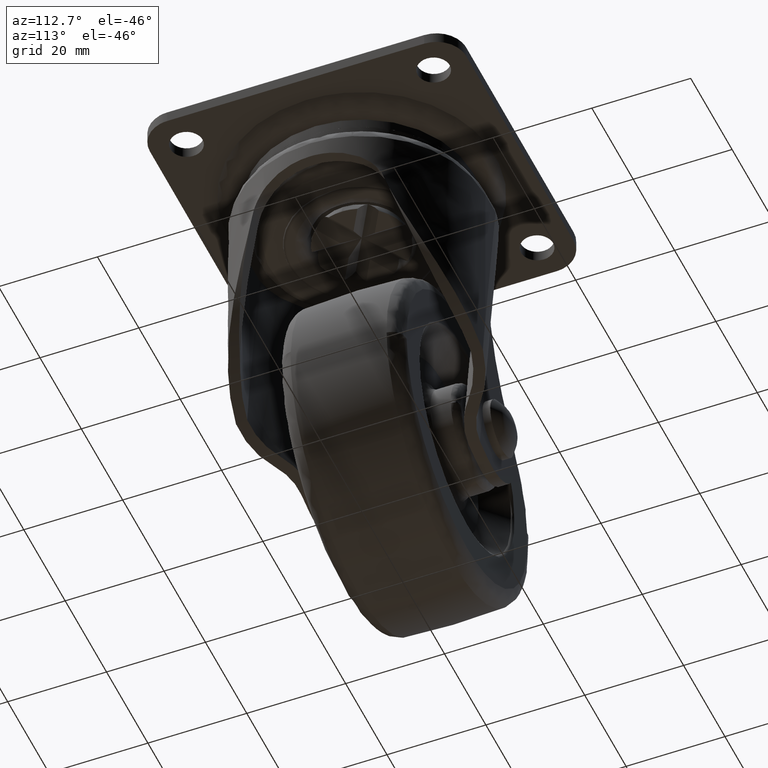
[diagram: clean part render]
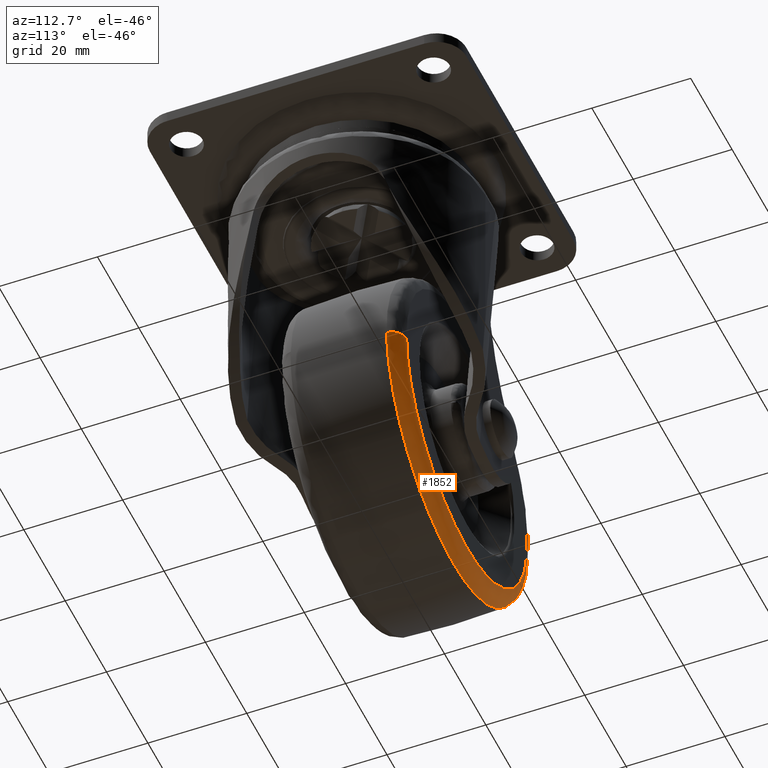
[diagram: same view with one face highlighted and labeled with its STEP entity id]
A machine part, auxiliary view. The second image highlights one B-rep face of the part: STEP entity #1852.
In plain terms, the highlighted face is a freeform B-spline surface patch.
Its self-contained STEP definition (entity closure, byte-faithful):
#1622=CARTESIAN_POINT('',(32.171227503708117,9.693880657307908,-53.489289725905302));
#1623=VERTEX_POINT('',#1622);
#1645=CARTESIAN_POINT('',(29.178913339442889,12.500000000000000,-53.397273788641762));
#1646=VERTEX_POINT('',#1645);
#1647=CARTESIAN_POINT('',(29.178913339442889,12.500000000000000,-53.397273788641762));
#1648=CARTESIAN_POINT('',(29.531775652713669,12.500267801807279,-53.408124573237387));
#1649=CARTESIAN_POINT('',(30.143177924392958,12.390712867092290,-53.426925658259641));
#1650=CARTESIAN_POINT('',(30.857563283181619,12.016328988221570,-53.448893551572439));
#1651=CARTESIAN_POINT('',(31.396950842889041,11.556239836847221,-53.465480129426439));
#1652=CARTESIAN_POINT('',(31.794257343009910,11.023793433203281,-53.477697606604011));
#1653=CARTESIAN_POINT('',(32.074380796565841,10.371471403699489,-53.486311615949688));
#1654=CARTESIAN_POINT('',(32.156081080726757,9.928729393122744,-53.488823961865513));
#1655=CARTESIAN_POINT('',(32.171227503708117,9.693880657307908,-53.489289725905302));
#1656=B_SPLINE_CURVE_WITH_KNOTS('',3,(#1647,#1648,#1649,#1650,#1651,#1652,#1653,#1654,#1655),.UNSPECIFIED.,.F.,.U.,(4,1,1,1,1,1,4),(0.000000045927896,1.059017042839589,1.835643077140589,2.400436078872668,3.177053439443104,3.812468766598913,4.518477396160195),.UNSPECIFIED.);
#1657=EDGE_CURVE('',#1646,#1623,#1656,.T.);
#1680=CARTESIAN_POINT('',(-29.079835593845541,12.500000000000000,-49.935385846574597));
#1681=VERTEX_POINT('',#1680);
#1700=CARTESIAN_POINT('',(-32.061988340695287,9.693893651880931,-49.672383288995938));
#1701=VERTEX_POINT('',#1700);
#1702=CARTESIAN_POINT('',(-29.079835593845541,12.500000000000000,-49.935385846574597));
#1703=CARTESIAN_POINT('',(-29.337708506648859,12.500085539263299,-49.912643471743763));
#1704=CARTESIAN_POINT('',(-29.736172339943149,12.447868767880371,-49.877502076878550));
#1705=CARTESIAN_POINT('',(-30.314346085603429,12.249427508633371,-49.826511672729367));
#1706=CARTESIAN_POINT('',(-30.747364044202332,12.008570155373940,-49.788322874153472));
#1707=CARTESIAN_POINT('',(-31.203306383771562,11.636586916731890,-49.748112324397063));
#1708=CARTESIAN_POINT('',(-31.583503733802822,11.183528503593321,-49.714581890531882));
#1709=CARTESIAN_POINT('',(-31.929528547072699,10.510585293006990,-49.684065207237538));
#1710=CARTESIAN_POINT('',(-32.042434858813976,9.999211941256894,-49.674107753237287));
#1711=CARTESIAN_POINT('',(-32.061988340695287,9.693893651880931,-49.672383288995938));
#1712=B_SPLINE_CURVE_WITH_KNOTS('',3,(#1702,#1703,#1704,#1705,#1706,#1707,#1708,#1709,#1710,#1711),.UNSPECIFIED.,.F.,.U.,(4,1,1,1,1,1,1,4),(0.000000045930533,0.776604367913706,1.200218804725723,1.835637765189119,2.259232183416897,2.965238782349595,3.600652270738464,4.518464320903350),.UNSPECIFIED.);
#1713=EDGE_CURVE('',#1681,#1701,#1712,.T.);
#1741=CARTESIAN_POINT('',(-28.878175411663975,12.493161683462828,-49.953170698357297));
#1742=CARTESIAN_POINT('',(-31.425004713306677,12.493161683462828,-78.831346110021286));
#1743=CARTESIAN_POINT('',(-2.546829301642702,12.493161683462828,-81.378175411663975));
#1744=CARTESIAN_POINT('',(26.331346110021272,12.493161683462828,-83.925004713306677));
#1745=CARTESIAN_POINT('',(28.878175411663975,12.493161683462828,-55.046829301642710));
#1746=CARTESIAN_POINT('',(28.951064501748561,12.493161683462821,-54.220349125801576));
#1747=CARTESIAN_POINT('',(28.976566032762580,12.493161683462828,-53.391053055373369));
#1748=CARTESIAN_POINT('',(-32.076447969676906,12.710316915993142,-49.671108062845470));
#1749=CARTESIAN_POINT('',(-34.905339906831450,12.710316915993142,-81.747556032522382));
#1750=CARTESIAN_POINT('',(-2.828891937154540,12.710316915993142,-84.576447969676920));
#1751=CARTESIAN_POINT('',(29.247556032522372,12.710316915993142,-87.405339906831443));
#1752=CARTESIAN_POINT('',(32.076447969676906,12.710316915993142,-55.328891937154552));
#1753=CARTESIAN_POINT('',(32.157409563417730,12.710316915993142,-54.410878663101585));
#1754=CARTESIAN_POINT('',(32.185735401911920,12.710316915993138,-53.489737632709321));
#1755=CARTESIAN_POINT('',(-32.068226609163439,9.492305889873826,-49.671833122568131));
#1756=CARTESIAN_POINT('',(-34.896393486595315,9.492305889873828,-81.740059731731577));
#1757=CARTESIAN_POINT('',(-2.828166877431872,9.492305889873826,-84.568226609163432));
#1758=CARTESIAN_POINT('',(29.240059731731556,9.492305889873828,-87.396393486595315));
#1759=CARTESIAN_POINT('',(32.068226609163439,9.492305889873826,-55.328166877431869));
#1760=CARTESIAN_POINT('',(32.149167452026504,9.492305889873826,-54.410388894957620));
#1761=CARTESIAN_POINT('',(32.177486030460933,9.492305889873830,-53.489483957804325));
#1769=(BOUNDED_SURFACE()B_SPLINE_SURFACE(2,2,((#1741,#1748,#1755),(#1742,#1749,#1756),(#1743,#1750,#1757),(#1744,#1751,#1758),(#1745,#1752,#1759),(#1746,#1753,#1760),(#1747,#1754,#1761)),.UNSPECIFIED.,.F.,.F.,.U.)B_SPLINE_SURFACE_WITH_KNOTS((3,2,2,3),(3,3),(0.0,53.338605427417569,106.677210854835100,108.810753037225500),(0.0,5.218753022996403),.UNSPECIFIED.)GEOMETRIC_REPRESENTATION_ITEM()RATIONAL_B_SPLINE_SURFACE(((0.911720571779066,0.623108992326374,0.915865769910749),(0.644683798852254,0.440604593892296,0.647614896560529),(0.911720571779066,0.623108992326374,0.915865769910749),(0.644683798852254,0.440604593892296,0.647614896560529),(0.911720571779066,0.623108992326374,0.915865769910749),(0.901039111048638,0.615808823351001,0.905135745209699),(0.891212166361714,0.609092667336700,0.895264121666096)))REPRESENTATION_ITEM('')SURFACE());
#1770=CARTESIAN_POINT('',(0.0,9.693877551020471,-84.686434716128545));
#1771=VERTEX_POINT('',#1770);
#1772=CARTESIAN_POINT('',(0.0,9.693877551020471,-84.686434716128545));
#1773=CARTESIAN_POINT('',(2.000834256087459,9.693877551001618,-84.686623970980833));
#1774=CARTESIAN_POINT('',(5.808785043346568,9.693877586487989,-84.330226623146373));
#1775=CARTESIAN_POINT('',(10.739431804783489,9.693877722735994,-82.961856992590569));
#1776=CARTESIAN_POINT('',(14.467016808845219,9.693877886320548,-81.318940340899530));
#1777=CARTESIAN_POINT('',(17.606186361354169,9.693878065438021,-79.520023275011894));
#1778=CARTESIAN_POINT('',(21.006299050085499,9.693878311559297,-77.048172401358116));
#1779=CARTESIAN_POINT('',(23.864615222317411,9.693878592572290,-74.225894441185545));
#1780=CARTESIAN_POINT('',(26.386202483244869,9.693878910529374,-71.032580738271065));
#1781=CARTESIAN_POINT('',(28.155686409309439,9.693879187748376,-68.248407290778346));
#1782=CARTESIAN_POINT('',(30.034678889595309,9.693879576180960,-64.347290640753016));
#1783=CARTESIAN_POINT('',(31.592717211918512,9.693880054712157,-59.541297195694128));
#1784=CARTESIAN_POINT('',(32.106004339883960,9.693880445331160,-55.618216589830240));
#1785=CARTESIAN_POINT('',(32.171227503708117,9.693880657307908,-53.489289725905302));
#1786=B_SPLINE_CURVE_WITH_KNOTS('',3,(#1772,#1773,#1774,#1775,#1776,#1777,#1778,#1779,#1780,#1781,#1782,#1783,#1784,#1785),.UNSPECIFIED.,.F.,.U.,(4,1,1,1,1,1,1,1,1,1,1,4),(0.000000034309323,6.002473706288768,11.424096123992809,15.296682059725450,18.201120349266802,22.267316980466219,27.882513557720468,30.206070270929750,34.465914492820993,37.757608727887423,43.179231199456773,49.568962601481111),.UNSPECIFIED.);
#1787=EDGE_CURVE('',#1771,#1623,#1786,.T.);
#1788=ORIENTED_EDGE('',*,*,#1787,.F.);
#1789=CARTESIAN_POINT('',(-32.061988340695287,9.693893651880931,-49.672383288995938));
#1790=CARTESIAN_POINT('',(-32.178064263241851,9.693893340298265,-50.988102199336382));
#1791=CARTESIAN_POINT('',(-32.246050466128906,9.693892694845298,-53.564228652423971));
#1792=CARTESIAN_POINT('',(-31.875649534688481,9.693891599225983,-57.516159293921319));
#1793=CARTESIAN_POINT('',(-30.947590089884571,9.693890311420615,-61.734451412006088));
#1794=CARTESIAN_POINT('',(-29.599742397639648,9.693889091361696,-65.324836664709096));
#1795=CARTESIAN_POINT('',(-27.826756232133992,9.693887808076807,-68.793462670686608));
#1796=CARTESIAN_POINT('',(-26.080468549336850,9.693886730956313,-71.481190841577558));
#1797=CARTESIAN_POINT('',(-23.822479347891651,9.693885527243976,-74.219289234477984));
#1798=CARTESIAN_POINT('',(-21.358012220168849,9.693884349542421,-76.677050749259848));
#1799=CARTESIAN_POINT('',(-18.622194355817509,9.693883188967460,-78.832928001629341));
#1800=CARTESIAN_POINT('',(-15.373783390559970,9.693881948301071,-80.857048165242290));
#1801=CARTESIAN_POINT('',(-12.101569822030100,9.693880822401601,-82.412963391853992));
#1802=CARTESIAN_POINT('',(-8.071120351789807,9.693879583681420,-83.751942723335958));
#1803=CARTESIAN_POINT('',(-4.101540274187450,9.693878504856988,-84.520074607576888));
#1804=CARTESIAN_POINT('',(-1.251310816879209,9.693877829001004,-84.686455217106257));
#1805=CARTESIAN_POINT('',(0.0,9.693877551020471,-84.686434716128545));
#1806=B_SPLINE_CURVE_WITH_KNOTS('',3,(#1789,#1790,#1791,#1792,#1793,#1794,#1795,#1796,#1797,#1798,#1799,#1800,#1801,#1802,#1803,#1804,#1805),.UNSPECIFIED.,.F.,.U.,(4,1,1,1,1,1,1,1,1,1,1,1,1,1,4),(0.000000027445729,3.962489687065229,7.716459743857627,11.887548328257481,16.892835911549579,19.186936331934341,23.566577182844519,26.486306322095810,29.823114511977479,33.994205471242722,36.913956524085521,41.293594018826852,44.839016390368741,49.635748778764167,53.389692830037639),.UNSPECIFIED.);
#1807=EDGE_CURVE('',#1701,#1771,#1806,.T.);
#1808=ORIENTED_EDGE('',*,*,#1807,.F.);
#1809=ORIENTED_EDGE('',*,*,#1713,.F.);
#1810=CARTESIAN_POINT('',(0.0,12.500000000000000,-81.692705999999887));
#1811=VERTEX_POINT('',#1810);
#1812=CARTESIAN_POINT('',(-29.079835593845541,12.500000000000000,-49.935385846574597));
#1813=CARTESIAN_POINT('',(-29.185104728032059,12.499999999999989,-51.128731284933117));
#1814=CARTESIAN_POINT('',(-29.256847689539129,12.500000000000080,-53.844156547744078));
#1815=CARTESIAN_POINT('',(-28.822257877151468,12.499999999999840,-57.677382931145416));
#1816=CARTESIAN_POINT('',(-27.903954756769711,12.500000000000220,-61.288859776700100));
#1817=CARTESIAN_POINT('',(-26.650447189885458,12.499999999999901,-64.595498032205498));
#1818=CARTESIAN_POINT('',(-25.087464393244190,12.500000000000011,-67.557946174316641));
#1819=CARTESIAN_POINT('',(-23.085286056998012,12.500000000000060,-70.471359158057638));
#1820=CARTESIAN_POINT('',(-20.929967143262580,12.499999999999980,-72.951184036546010));
#1821=CARTESIAN_POINT('',(-18.120391286380300,12.500000000000000,-75.493159576756014));
#1822=CARTESIAN_POINT('',(-14.690143201536630,12.500000000000000,-77.869554552600917));
#1823=CARTESIAN_POINT('',(-10.639123073290509,12.500000000000020,-79.811865848426123));
#1824=CARTESIAN_POINT('',(-5.674485256656674,12.499999999999970,-81.301870886669988));
#1825=CARTESIAN_POINT('',(-2.143802003115734,12.500000000000160,-81.693147425067039));
#1826=CARTESIAN_POINT('',(0.0,12.500000000000000,-81.692705999999887));
#1827=B_SPLINE_CURVE_WITH_KNOTS('',3,(#1812,#1813,#1814,#1815,#1816,#1817,#1818,#1819,#1820,#1821,#1822,#1823,#1824,#1825,#1826),.UNSPECIFIED.,.F.,.U.,(4,1,1,1,1,1,1,1,1,1,1,1,4),(0.000000036801509,3.593946749432625,8.133684036508669,11.538485223541491,14.754136461624171,18.726394780921769,21.563743842067669,25.346811051319420,28.562454167941230,32.913053798935003,37.831102568503510,41.992520674214603,48.423804604372599),.UNSPECIFIED.);
#1828=EDGE_CURVE('',#1681,#1811,#1827,.T.);
#1829=ORIENTED_EDGE('',*,*,#1828,.T.);
#1830=CARTESIAN_POINT('',(0.0,12.500000000000000,-81.692705999999887));
#1831=CARTESIAN_POINT('',(1.814742680615825,12.500000000000011,-81.692906817869627));
#1832=CARTESIAN_POINT('',(4.390400844579302,12.500000000000000,-81.451741343223063));
#1833=CARTESIAN_POINT('',(7.930589438045544,12.500000000000000,-80.639189597213019));
#1834=CARTESIAN_POINT('',(10.825481448351130,12.499999999999980,-79.683624079581193));
#1835=CARTESIAN_POINT('',(13.962248997737310,12.500000000000149,-78.221641634215189));
#1836=CARTESIAN_POINT('',(16.894794479473742,12.499999999999741,-76.385210461132118));
#1837=CARTESIAN_POINT('',(19.368739076562580,12.500000000000330,-74.409950220991405));
#1838=CARTESIAN_POINT('',(21.543748902480718,12.499999999999790,-72.275231497337501));
#1839=CARTESIAN_POINT('',(23.789594108947441,12.500000000000290,-69.567996589471761));
#1840=CARTESIAN_POINT('',(25.848622411179122,12.499999999999520,-66.284782451510139));
#1841=CARTESIAN_POINT('',(27.341329865374309,12.500000000000201,-62.903529295031397));
#1842=CARTESIAN_POINT('',(28.325069340807321,12.499999999999940,-59.772887343897096));
#1843=CARTESIAN_POINT('',(28.949132068031791,12.500000000000020,-56.728531142875163));
#1844=CARTESIAN_POINT('',(29.144755011421768,12.500000000000449,-54.508999488912352));
#1845=CARTESIAN_POINT('',(29.178913339442889,12.500000000000000,-53.397273788641762));
#1846=B_SPLINE_CURVE_WITH_KNOTS('',3,(#1830,#1831,#1832,#1833,#1834,#1835,#1836,#1837,#1838,#1839,#1840,#1841,#1842,#1843,#1844,#1845),.UNSPECIFIED.,.F.,.U.,(4,1,1,1,1,1,1,1,1,1,1,1,1,4),(0.000000040425441,5.444180246307624,7.727226634189506,10.888373910297609,14.576384677879300,18.088761065120661,21.249925485699489,24.059774450780111,27.220913666181289,31.787020270504790,35.650651782673179,38.284935005477578,41.621695526520703,44.958448023052803),.UNSPECIFIED.);
#1847=EDGE_CURVE('',#1811,#1646,#1846,.T.);
#1848=ORIENTED_EDGE('',*,*,#1847,.T.);
#1849=ORIENTED_EDGE('',*,*,#1657,.T.);
#1850=EDGE_LOOP('',(#1788,#1808,#1809,#1829,#1848,#1849));
#1851=FACE_OUTER_BOUND('',#1850,.T.);
#1852=ADVANCED_FACE('',(#1851),#1769,.T.);